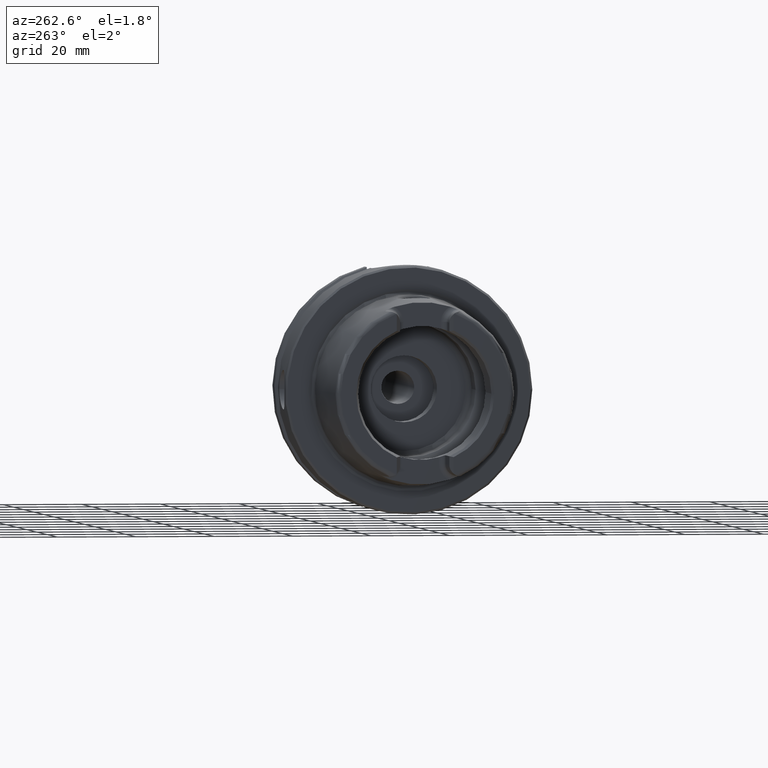
[diagram: clean part render]
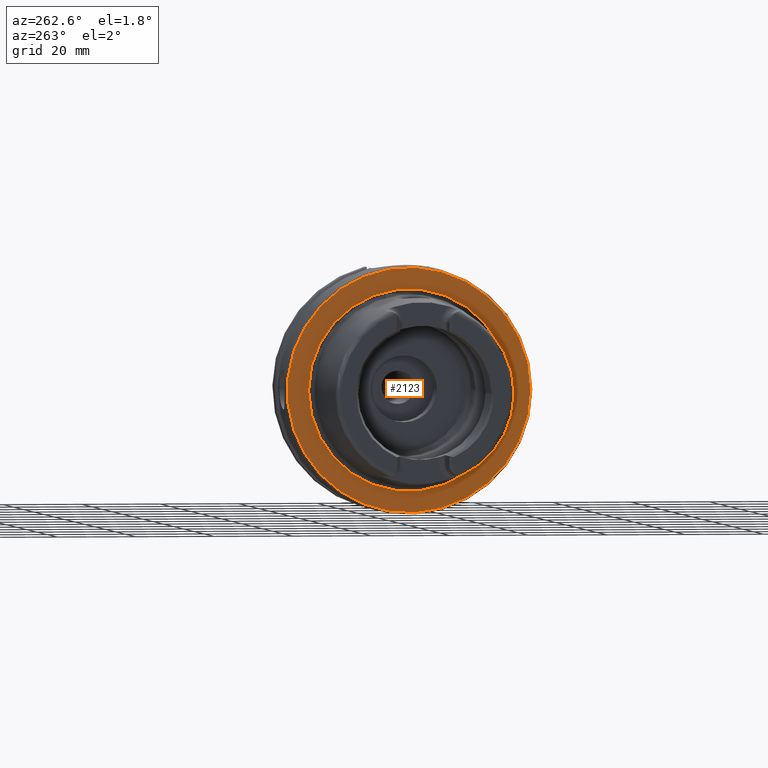
[diagram: same view with one face highlighted and labeled with its STEP entity id]
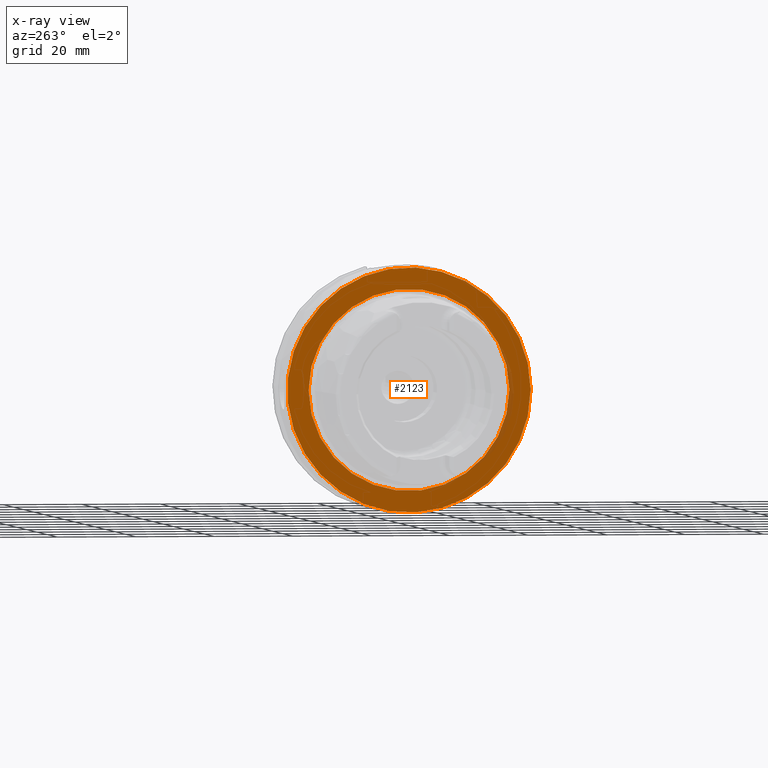
[diagram: x-ray of the same camera — body ghosted, the highlighted face saturated]
A machine part, auxiliary view. The second image highlights one B-rep face of the part: STEP entity #2123.
The next image is the same camera in x-ray: the body ghosted, the highlighted face saturated — about 4% of this face is hidden behind the body in this view.
In plain terms, the highlighted planar face has unit normal (-1, 0, 0).
Its self-contained STEP definition (entity closure, byte-faithful):
#101=FACE_BOUND('',#464,.T.);
#143=PLANE('',#2399);
#330=FACE_OUTER_BOUND('',#463,.T.);
#463=EDGE_LOOP('',(#1969));
#464=EDGE_LOOP('',(#1970));
#812=CIRCLE('',#2398,25.5879092835167);
#813=CIRCLE('',#2400,31.);
#1022=VERTEX_POINT('',#4495);
#1023=VERTEX_POINT('',#4499);
#1339=EDGE_CURVE('',#1022,#1022,#812,.T.);
#1340=EDGE_CURVE('',#1023,#1023,#813,.T.);
#1969=ORIENTED_EDGE('',*,*,#1340,.F.);
#1970=ORIENTED_EDGE('',*,*,#1339,.T.);
#2123=ADVANCED_FACE('',(#330,#101),#143,.T.);
#2398=AXIS2_PLACEMENT_3D('',#4497,#3012,#3013);
#2399=AXIS2_PLACEMENT_3D('',#4498,#3014,#3015);
#2400=AXIS2_PLACEMENT_3D('',#4500,#3016,#3017);
#3012=DIRECTION('center_axis',(1.,0.,0.));
#3013=DIRECTION('ref_axis',(0.,0.,-1.));
#3014=DIRECTION('center_axis',(-1.,0.,0.));
#3015=DIRECTION('ref_axis',(0.,0.,1.));
#3016=DIRECTION('center_axis',(1.,0.,0.));
#3017=DIRECTION('ref_axis',(0.,0.,-1.));
#4495=CARTESIAN_POINT('',(-3.55618312575245E-16,-25.5879092835167,-3.13361512009315E-15));
#4497=CARTESIAN_POINT('Origin',(0.,0.,0.));
#4498=CARTESIAN_POINT('Origin',(0.,31.,0.));
#4499=CARTESIAN_POINT('',(-5.89805981832114E-16,-31.,-3.7964050773568E-15));
#4500=CARTESIAN_POINT('Origin',(0.,0.,0.));